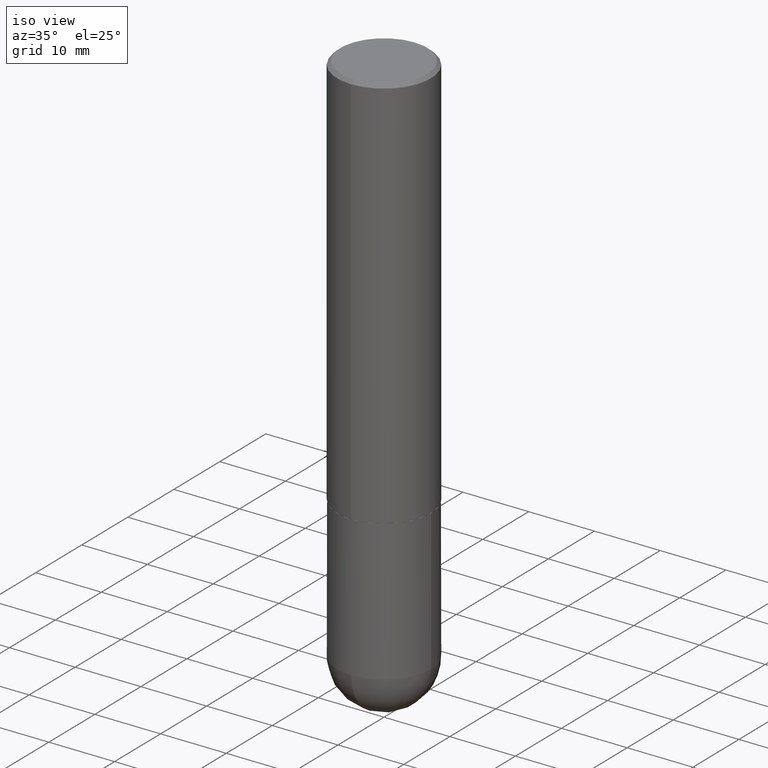
[diagram: clean part render]
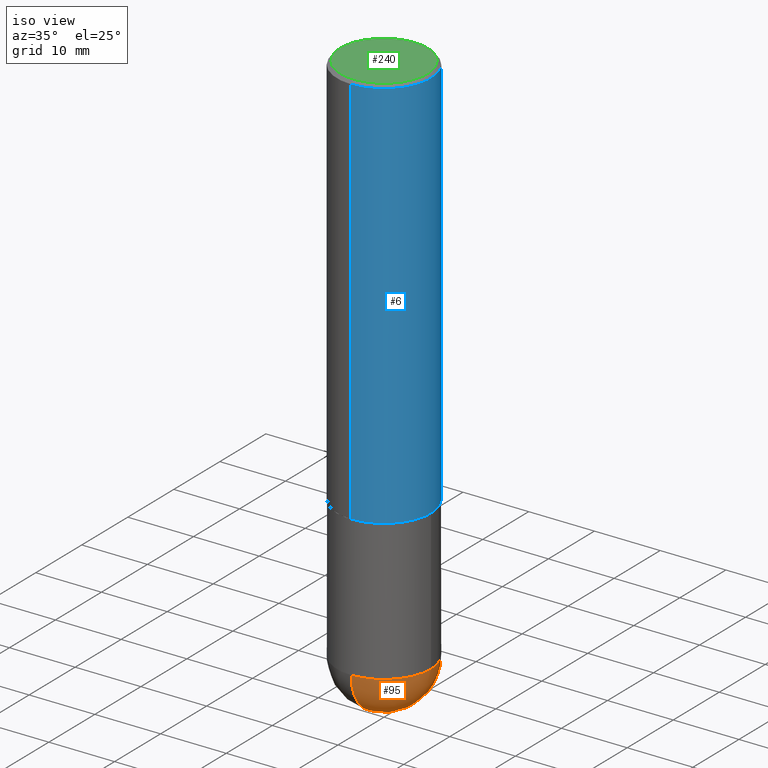
[diagram: same view with three faces highlighted in distinct colors, each labeled with its STEP entity id]
A machine part, iso view with three faces highlighted in distinct colors.
Their STEP definitions:

[orange] entity #95 — the highlighted spherical surface has radius 7.1438 mm.
#26 = CIRCLE ( 'NONE', #281, 0.2812500000000003331 ) ;
#32 = FACE_OUTER_BOUND ( 'NONE', #237, .T. ) ;
#53 = DIRECTION ( 'NONE',  ( 6.982962677686265133E-15, 1.000000000000000000, 0.000000000000000000 ) ) ;
#73 = ORIENTED_EDGE ( 'NONE', *, *, #187, .T. ) ;
#85 = CIRCLE ( 'NONE', #150, 0.2812500000000003331 ) ;
#93 = DIRECTION ( 'NONE',  ( 1.000000000000000000, -6.982962677686268288E-15, 0.000000000000000000 ) ) ;
#94 = CIRCLE ( 'NONE', #287, 0.2812500000000000555 ) ;
#95 = ADVANCED_FACE ( 'NONE', ( #32 ), #338, .T. ) ;
#111 = ORIENTED_EDGE ( 'NONE', *, *, #260, .F. ) ;
#122 = DIRECTION ( 'NONE',  ( -1.000000000000000000, 6.982962677686265922E-15, -4.883557194083112901E-29 ) ) ;
#145 = CIRCLE ( 'NONE', #400, 0.2812500000000000555 ) ;
#150 = AXIS2_PLACEMENT_3D ( 'NONE', #229, #270, #168 ) ;
#162 = CARTESIAN_POINT ( 'NONE',  ( 8.240046819675677659E-29, -1.267714545847805119E-14, -3.500000000000000000 ) ) ;
#165 = VERTEX_POINT ( 'NONE', #372 ) ;
#168 = DIRECTION ( 'NONE',  ( -7.105427357601001859E-15, -1.000000000000000000, 0.000000000000000000 ) ) ;
#183 = CARTESIAN_POINT ( 'NONE',  ( 7.871352719908407300E-29, -1.123820555940137375E-14, -3.218749999999999556 ) ) ;
#187 = EDGE_CURVE ( 'NONE', #391, #165, #26, .T. ) ;
#195 = DIRECTION ( 'NONE',  ( -2.445468806185136597E-29, 3.491481338843145583E-15, 1.000000000000000000 ) ) ;
#202 = CARTESIAN_POINT ( 'NONE',  ( 7.540232941994521053E-29, -1.171238792754142562E-14, -3.218749999999999556 ) ) ;
#226 = VERTEX_POINT ( 'NONE', #242 ) ;
#228 = VERTEX_POINT ( 'NONE', #333 ) ;
#229 = CARTESIAN_POINT ( 'NONE',  ( 7.540232941994521053E-29, -1.171238792754142562E-14, -3.218749999999999556 ) ) ;
#237 = EDGE_LOOP ( 'NONE', ( #111, #73, #319, #267 ) ) ;
#242 = CARTESIAN_POINT ( 'NONE',  ( -1.998401444325206042E-15, -0.2812500000000116573, -3.218749999999998668 ) ) ;
#260 = EDGE_CURVE ( 'NONE', #391, #226, #85, .T. ) ;
#264 = DIRECTION ( 'NONE',  ( -2.445468806185136597E-29, 3.491481338843145583E-15, 1.000000000000000000 ) ) ;
#267 = ORIENTED_EDGE ( 'NONE', *, *, #310, .F. ) ;
#270 = DIRECTION ( 'NONE',  ( -1.000000000000000000, 7.105427357601001070E-15, -4.926315508542082329E-29 ) ) ;
#281 = AXIS2_PLACEMENT_3D ( 'NONE', #202, #326, #53 ) ;
#283 = DIRECTION ( 'NONE',  ( 1.000000000000000000, -6.982962677686268288E-15, 0.000000000000000000 ) ) ;
#287 = AXIS2_PLACEMENT_3D ( 'NONE', #183, #264, #93 ) ;
#294 = CARTESIAN_POINT ( 'NONE',  ( 7.871352719908407300E-29, -1.123820555940137375E-14, -3.218749999999999556 ) ) ;
#302 = AXIS2_PLACEMENT_3D ( 'NONE', #409, #122, #304 ) ;
#304 = DIRECTION ( 'NONE',  ( 6.982962677686265922E-15, 1.000000000000000000, -3.885294924322502955E-15 ) ) ;
#310 = EDGE_CURVE ( 'NONE', #226, #228, #94, .T. ) ;
#319 = ORIENTED_EDGE ( 'NONE', *, *, #403, .F. ) ;
#326 = DIRECTION ( 'NONE',  ( 1.000000000000000000, -6.982962677686265922E-15, 4.883557194083112340E-29 ) ) ;
#333 = CARTESIAN_POINT ( 'NONE',  ( 0.2812500000000000555, -1.172919512267618602E-14, -3.218749999999999556 ) ) ;
#338 = SPHERICAL_SURFACE ( 'NONE', #302, 0.2812500000000003331 ) ;
#372 = CARTESIAN_POINT ( 'NONE',  ( 1.963958253099340610E-15, 0.2812499999999886757, -3.218750000000000888 ) ) ;
#391 = VERTEX_POINT ( 'NONE', #162 ) ;
#400 = AXIS2_PLACEMENT_3D ( 'NONE', #294, #195, #283 ) ;
#403 = EDGE_CURVE ( 'NONE', #228, #165, #145, .T. ) ;
#409 = CARTESIAN_POINT ( 'NONE',  ( 7.540232941994521053E-29, -1.171238792754142562E-14, -3.218749999999999556 ) ) ;

[blue] entity #6 — the highlighted cylindrical surface (partial cylindrical patch) has radius 7.1438 mm, axis along (-0, 0, 1).
#3 = VECTOR ( 'NONE', #8, 39.37007874015748143 ) ;
#6 = ADVANCED_FACE ( 'NONE', ( #288 ), #382, .T. ) ;
#8 = DIRECTION ( 'NONE',  ( -2.445561105913636168E-29, 3.491349160378560520E-15, 1.000000000000000000 ) ) ;
#9 = CARTESIAN_POINT ( 'NONE',  ( -1.929515061873242463E-15, -0.2812500000000000555, -0.01999999999999908101 ) ) ;
#10 = EDGE_LOOP ( 'NONE', ( #230, #351, #104, #346 ) ) ;
#13 = VECTOR ( 'NONE', #126, 39.37007874015748143 ) ;
#16 = VERTEX_POINT ( 'NONE', #9 ) ;
#23 = DIRECTION ( 'NONE',  ( -2.445561105913635888E-29, 3.491349160378560520E-15, 1.000000000000000000 ) ) ;
#35 = DIRECTION ( 'NONE',  ( -6.982962677686265133E-15, -1.000000000000000000, 3.885294924322504533E-15 ) ) ;
#41 = EDGE_CURVE ( 'NONE', #16, #138, #305, .T. ) ;
#43 = CARTESIAN_POINT ( 'NONE',  ( -1.963958253099263301E-15, -0.2812500000000001110, 9.819419513564705654E-16 ) ) ;
#44 = DIRECTION ( 'NONE',  ( -6.982962677686266711E-15, -1.000000000000000000, 3.491349160378560520E-15 ) ) ;
#50 = CIRCLE ( 'NONE', #407, 0.2812500000000002220 ) ;
#60 = DIRECTION ( 'NONE',  ( -2.445561105913635888E-29, 3.491349160378560520E-15, 1.000000000000000000 ) ) ;
#104 = ORIENTED_EDGE ( 'NONE', *, *, #41, .F. ) ;
#126 = DIRECTION ( 'NONE',  ( -2.445561105913636168E-29, 3.491349160378560520E-15, 1.000000000000000000 ) ) ;
#128 = CARTESIAN_POINT ( 'NONE',  ( 1.998401444325282167E-15, 0.2812500000000001110, -9.819419513564705654E-16 ) ) ;
#131 = EDGE_CURVE ( 'NONE', #322, #156, #50, .T. ) ;
#138 = VERTEX_POINT ( 'NONE', #311 ) ;
#152 = LINE ( 'NONE', #128, #13 ) ;
#156 = VERTEX_POINT ( 'NONE', #411 ) ;
#188 = CARTESIAN_POINT ( 'NONE',  ( 0.000000000000000000, 0.000000000000000000, 0.000000000000000000 ) ) ;
#230 = ORIENTED_EDGE ( 'NONE', *, *, #131, .T. ) ;
#280 = CARTESIAN_POINT ( 'NONE',  ( 5.805762065438970283E-29, -8.288462906738701557E-15, -2.373999999999999666 ) ) ;
#282 = EDGE_CURVE ( 'NONE', #156, #138, #152, .T. ) ;
#288 = FACE_OUTER_BOUND ( 'NONE', #10, .T. ) ;
#305 = CIRCLE ( 'NONE', #344, 0.2812500000000000000 ) ;
#311 = CARTESIAN_POINT ( 'NONE',  ( 1.963958253099262907E-15, 0.2812499999999999445, -0.02000000000000104472 ) ) ;
#318 = DIRECTION ( 'NONE',  ( -2.445561105913635888E-29, 3.491349160378560520E-15, 1.000000000000000000 ) ) ;
#322 = VERTEX_POINT ( 'NONE', #341 ) ;
#341 = CARTESIAN_POINT ( 'NONE',  ( -1.963958253099205714E-15, -0.2812500000000085487, -2.373999999999998334 ) ) ;
#344 = AXIS2_PLACEMENT_3D ( 'NONE', #358, #23, #365 ) ;
#346 = ORIENTED_EDGE ( 'NONE', *, *, #384, .F. ) ;
#350 = LINE ( 'NONE', #43, #3 ) ;
#351 = ORIENTED_EDGE ( 'NONE', *, *, #282, .T. ) ;
#358 = CARTESIAN_POINT ( 'NONE',  ( 4.891122211827287681E-31, -6.982698320757142044E-17, -0.02000000000000006287 ) ) ;
#365 = DIRECTION ( 'NONE',  ( -6.982962677686266711E-15, -1.000000000000000000, 3.490694658571002804E-15 ) ) ;
#382 = CYLINDRICAL_SURFACE ( 'NONE', #399, 0.2812500000000001110 ) ;
#384 = EDGE_CURVE ( 'NONE', #322, #16, #350, .T. ) ;
#399 = AXIS2_PLACEMENT_3D ( 'NONE', #188, #318, #44 ) ;
#407 = AXIS2_PLACEMENT_3D ( 'NONE', #280, #60, #35 ) ;
#411 = CARTESIAN_POINT ( 'NONE',  ( 1.998401444325312144E-15, 0.2812499999999919509, -2.374000000000000554 ) ) ;

[green] entity #240 — the highlighted planar face has unit normal (0, -0, -1).
#2 = CIRCLE ( 'NONE', #116, 0.2612499999999999267 ) ;
#17 = VERTEX_POINT ( 'NONE', #57 ) ;
#19 = AXIS2_PLACEMENT_3D ( 'NONE', #284, #155, #380 ) ;
#25 = CARTESIAN_POINT ( 'NONE',  ( 1.824298999545536310E-15, 0.2612499999999999267, -8.929239277553832707E-16 ) ) ;
#57 = CARTESIAN_POINT ( 'NONE',  ( 1.894128626322399609E-15, 0.2612499999999999267, -8.737328873618678649E-16 ) ) ;
#87 = PLANE ( 'NONE',  #241 ) ;
#88 = CARTESIAN_POINT ( 'NONE',  ( -9.386572393679780245E-46, 1.340052455293824301E-31, 3.838208078703090415E-17 ) ) ;
#113 = EDGE_CURVE ( 'NONE', #192, #17, #2, .T. ) ;
#116 = AXIS2_PLACEMENT_3D ( 'NONE', #88, #404, #243 ) ;
#130 = ORIENTED_EDGE ( 'NONE', *, *, #149, .T. ) ;
#147 = DIRECTION ( 'NONE',  ( 2.445561105913635328E-29, -3.491349160378560520E-15, -1.000000000000000000 ) ) ;
#149 = EDGE_CURVE ( 'NONE', #17, #192, #235, .T. ) ;
#155 = DIRECTION ( 'NONE',  ( -2.445561105913635888E-29, 3.491349160378560520E-15, 1.000000000000000000 ) ) ;
#181 = EDGE_LOOP ( 'NONE', ( #130, #268 ) ) ;
#192 = VERTEX_POINT ( 'NONE', #275 ) ;
#235 = CIRCLE ( 'NONE', #19, 0.2612499999999999267 ) ;
#240 = ADVANCED_FACE ( 'NONE', ( #363 ), #87, .F. ) ;
#241 = AXIS2_PLACEMENT_3D ( 'NONE', #25, #147, #249 ) ;
#243 = DIRECTION ( 'NONE',  ( -6.982962677686265133E-15, -1.000000000000000000, 3.491349160378560520E-15 ) ) ;
#249 = DIRECTION ( 'NONE',  ( 6.982962677686265922E-15, 1.000000000000000000, -3.491349160378560520E-15 ) ) ;
#268 = ORIENTED_EDGE ( 'NONE', *, *, #113, .T. ) ;
#275 = CARTESIAN_POINT ( 'NONE',  ( -1.860910081895527526E-15, -0.2612499999999999267, 9.504970489359294883E-16 ) ) ;
#284 = CARTESIAN_POINT ( 'NONE',  ( -9.386572393679780245E-46, 1.340052455293824301E-31, 3.838208078703090415E-17 ) ) ;
#363 = FACE_OUTER_BOUND ( 'NONE', #181, .T. ) ;
#380 = DIRECTION ( 'NONE',  ( -6.982962677686265133E-15, -1.000000000000000000, 3.491349160378560520E-15 ) ) ;
#404 = DIRECTION ( 'NONE',  ( -2.445561105913635888E-29, 3.491349160378560520E-15, 1.000000000000000000 ) ) ;